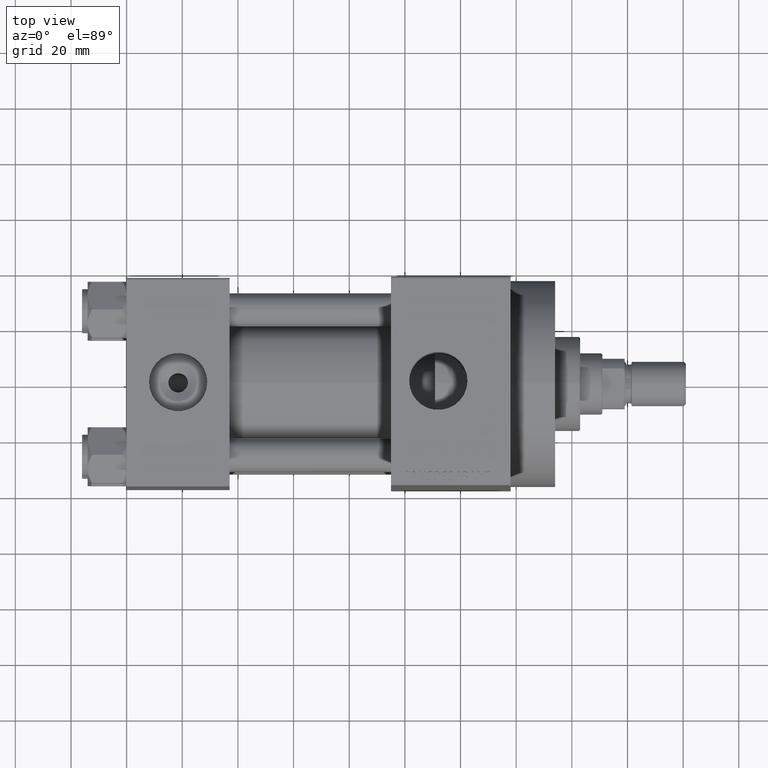
[diagram: clean part render]
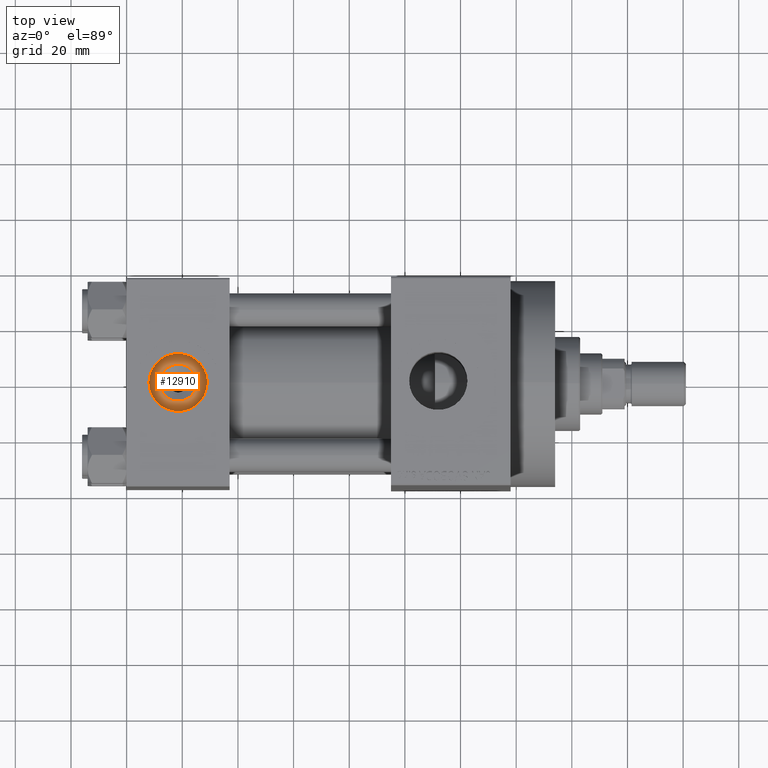
[diagram: same view with one face highlighted and labeled with its STEP entity id]
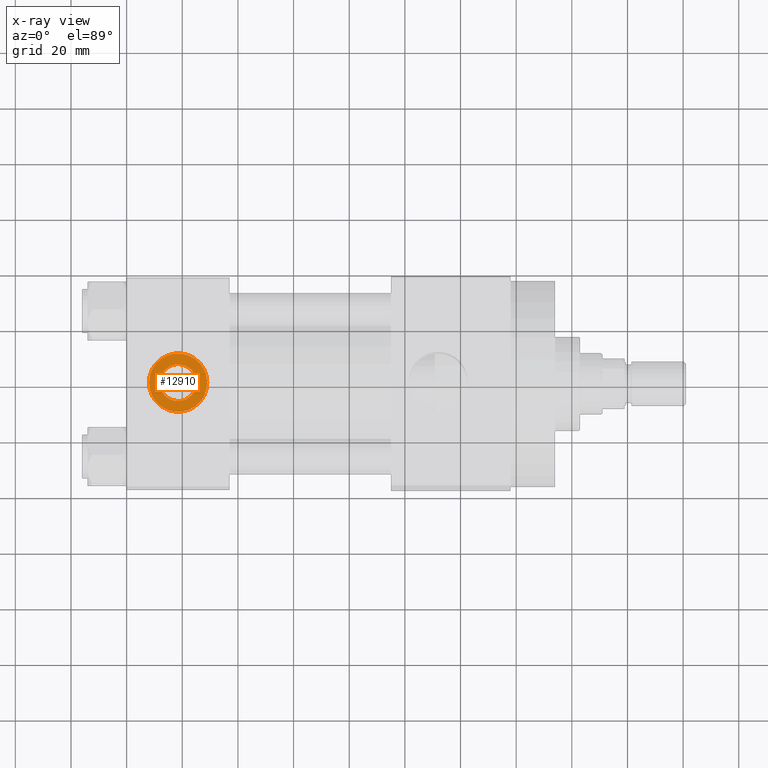
[diagram: x-ray of the same camera — body ghosted, the highlighted face saturated]
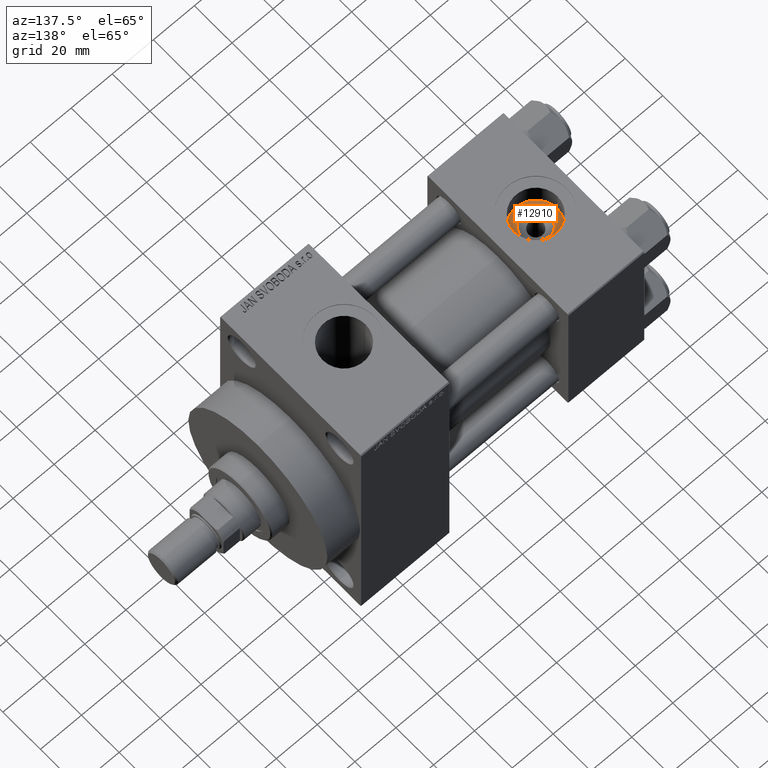
[diagram: same view with one face highlighted and labeled with its STEP entity id]
A machine part, top view. The second image highlights one B-rep face of the part: STEP entity #12910.
The next image is the same camera in x-ray: the body ghosted, the highlighted face saturated — about 0% of this face is hidden behind the body in this view.
A second angle (auxiliary view) of the same face is appended — the face is thin or edge-on in the first view.
In plain terms, the highlighted planar face has unit normal (0, 0, 1).
Its self-contained STEP definition (entity closure, byte-faithful):
#491 = AXIS2_PLACEMENT_3D ( 'NONE', #43861, #7229, #39759 ) ;
#1769 = AXIS2_PLACEMENT_3D ( 'NONE', #41987, #41739, #12821 ) ;
#3400 = ORIENTED_EDGE ( 'NONE', *, *, #20709, .T. ) ;
#4241 = CIRCLE ( 'NONE', #47335, 10.48000000000000043 ) ;
#4876 = ORIENTED_EDGE ( 'NONE', *, *, #5310, .T. ) ;
#4943 = VERTEX_POINT ( 'NONE', #28707 ) ;
#5310 = EDGE_CURVE ( 'NONE', #4943, #38974, #6551, .T. ) ;
#6551 = CIRCLE ( 'NONE', #9598, 6.639999999999986358 ) ;
#6974 = EDGE_CURVE ( 'NONE', #30641, #29257, #20470, .T. ) ;
#7229 = DIRECTION ( 'NONE',  ( 0.000000000000000000, 0.000000000000000000, 1.000000000000000000 ) ) ;
#7457 = DIRECTION ( 'NONE',  ( 1.000000000000000000, 0.000000000000000000, 0.000000000000000000 ) ) ;
#9598 = AXIS2_PLACEMENT_3D ( 'NONE', #18955, #11953, #44501 ) ;
#10297 = EDGE_LOOP ( 'NONE', ( #37052, #43803 ) ) ;
#11162 = FACE_BOUND ( 'NONE', #46734, .T. ) ;
#11953 = DIRECTION ( 'NONE',  ( -0.000000000000000000, -0.000000000000000000, -1.000000000000000000 ) ) ;
#12821 = DIRECTION ( 'NONE',  ( 1.000000000000000000, 0.000000000000000000, -0.000000000000000000 ) ) ;
#12910 = ADVANCED_FACE ( 'NONE', ( #11162, #46074 ), #27300, .T. ) ;
#14479 = CARTESIAN_POINT ( 'NONE',  ( 11.86000000000001364, -4.391004953296580751E-15, 26.69999999999999929 ) ) ;
#18013 = DIRECTION ( 'NONE',  ( 1.000000000000000000, 0.000000000000000000, 0.000000000000000000 ) ) ;
#18955 = CARTESIAN_POINT ( 'NONE',  ( 18.50000000000000000, -5.204170427930421283E-15, 26.69999999999999929 ) ) ;
#20470 = CIRCLE ( 'NONE', #491, 10.48000000000000043 ) ;
#20709 = EDGE_CURVE ( 'NONE', #38974, #4943, #28839, .T. ) ;
#26248 = CARTESIAN_POINT ( 'NONE',  ( 18.50000000000000000, -5.204170427930421283E-15, 26.69999999999999929 ) ) ;
#27300 = PLANE ( 'NONE',  #1769 ) ;
#28707 = CARTESIAN_POINT ( 'NONE',  ( 25.13999999999998636, -5.204170427930421283E-15, 26.69999999999999929 ) ) ;
#28839 = CIRCLE ( 'NONE', #29652, 6.639999999999986358 ) ;
#29115 = DIRECTION ( 'NONE',  ( -0.000000000000000000, -0.000000000000000000, -1.000000000000000000 ) ) ;
#29257 = VERTEX_POINT ( 'NONE', #32698 ) ;
#29652 = AXIS2_PLACEMENT_3D ( 'NONE', #39942, #29115, #18013 ) ;
#30641 = VERTEX_POINT ( 'NONE', #39101 ) ;
#32698 = CARTESIAN_POINT ( 'NONE',  ( 8.019999999999999574, -3.920740582423995006E-15, 26.69999999999999929 ) ) ;
#33483 = DIRECTION ( 'NONE',  ( 0.000000000000000000, 0.000000000000000000, 1.000000000000000000 ) ) ;
#37052 = ORIENTED_EDGE ( 'NONE', *, *, #6974, .T. ) ;
#38974 = VERTEX_POINT ( 'NONE', #14479 ) ;
#39101 = CARTESIAN_POINT ( 'NONE',  ( 28.98000000000000043, -5.204170427930421283E-15, 26.69999999999999929 ) ) ;
#39759 = DIRECTION ( 'NONE',  ( 1.000000000000000000, 0.000000000000000000, 0.000000000000000000 ) ) ;
#39942 = CARTESIAN_POINT ( 'NONE',  ( 18.50000000000000000, -5.204170427930421283E-15, 26.69999999999999929 ) ) ;
#41739 = DIRECTION ( 'NONE',  ( 0.000000000000000000, 0.000000000000000000, 1.000000000000000000 ) ) ;
#41987 = CARTESIAN_POINT ( 'NONE',  ( 18.50000000000000000, -5.204170427930421283E-15, 26.69999999999999929 ) ) ;
#43803 = ORIENTED_EDGE ( 'NONE', *, *, #47512, .T. ) ;
#43861 = CARTESIAN_POINT ( 'NONE',  ( 18.50000000000000000, -5.204170427930421283E-15, 26.69999999999999929 ) ) ;
#44501 = DIRECTION ( 'NONE',  ( 1.000000000000000000, 0.000000000000000000, 0.000000000000000000 ) ) ;
#46074 = FACE_OUTER_BOUND ( 'NONE', #10297, .T. ) ;
#46734 = EDGE_LOOP ( 'NONE', ( #4876, #3400 ) ) ;
#47335 = AXIS2_PLACEMENT_3D ( 'NONE', #26248, #33483, #7457 ) ;
#47512 = EDGE_CURVE ( 'NONE', #29257, #30641, #4241, .T. ) ;